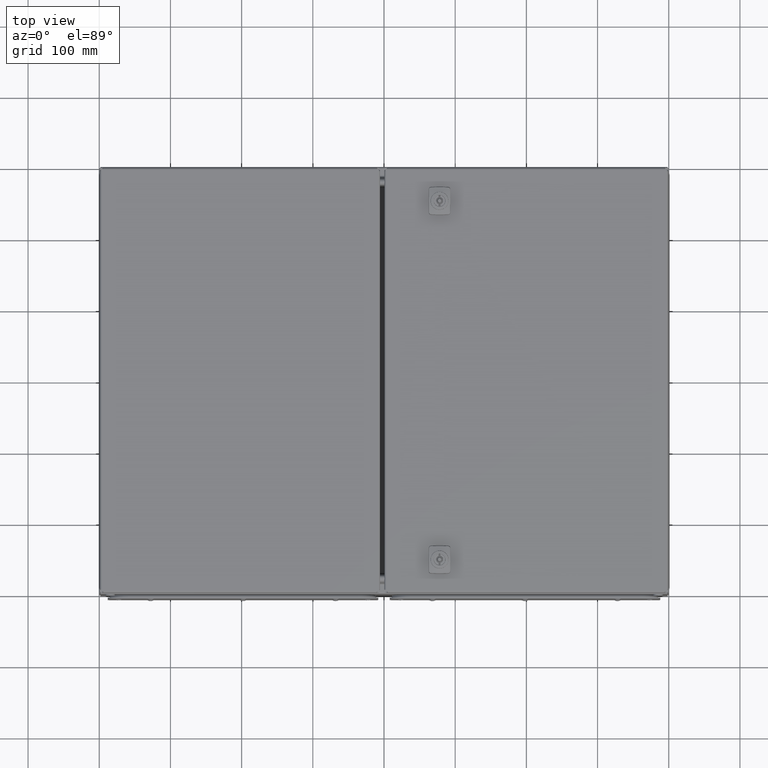
[diagram: clean part render]
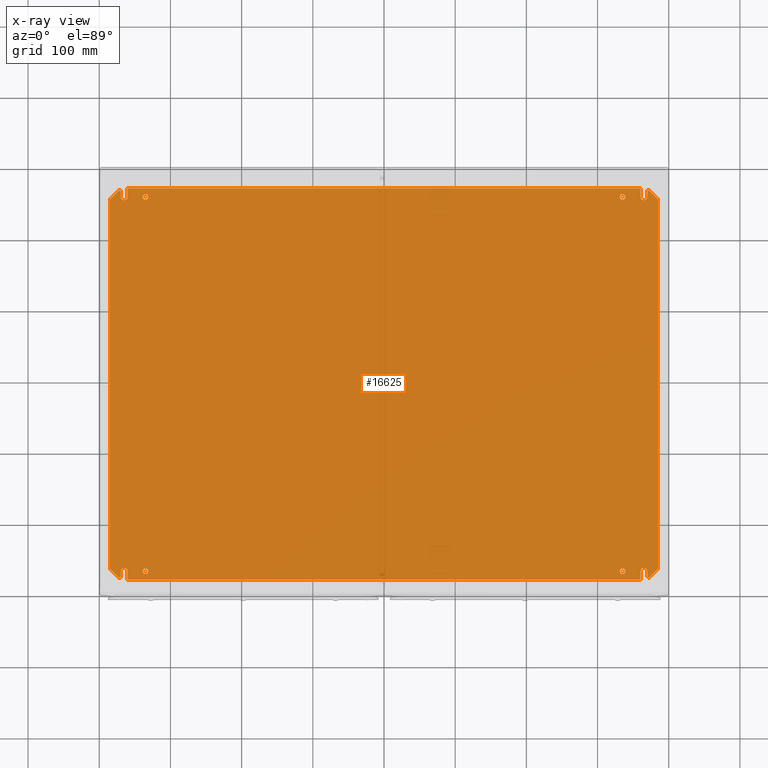
[diagram: x-ray — body ghosted, one internal face saturated and labeled with its STEP entity id]
A machine part, top view, then the same camera in x-ray: the body is ghosted and one INTERNAL B-rep face — a face not visible from any outside direction — is saturated and labeled: STEP entity #16625.
In plain terms, the highlighted planar face has unit normal (0, 0, 1).
Its self-contained STEP definition (entity closure, byte-faithful):
#790 = CARTESIAN_POINT ( 'NONE',  ( -384.9999999999998900, -275.0000000000000000, 2.500000000000000000 ) ) ;
#792 = DIRECTION ( 'NONE',  ( 1.000000000000000000, 1.441848083928774700E-016, 0.0000000000000000000 ) ) ;
#870 = DIRECTION ( 'NONE',  ( 0.0000000000000000000, -1.000000000000000000, 0.0000000000000000000 ) ) ;
#876 = CARTESIAN_POINT ( 'NONE',  ( -369.7500000000002300, -262.9999999999999400, 2.499999999997726300 ) ) ;
#896 = CARTESIAN_POINT ( 'NONE',  ( -371.7500000000002300, -270.0000000000000000, 2.499999999997726300 ) ) ;
#900 = DIRECTION ( 'NONE',  ( 0.0000000000000000000, 0.0000000000000000000, -1.000000000000000000 ) ) ;
#902 = DIRECTION ( 'NONE',  ( 1.000000000000000000, 0.0000000000000000000, 0.0000000000000000000 ) ) ;
#2019 = CARTESIAN_POINT ( 'NONE',  ( 360.2500000000001700, 274.9999999999998900, 2.499999999997726300 ) ) ;
#2294 = DIRECTION ( 'NONE',  ( 0.0000000000000000000, -1.000000000000000000, 0.0000000000000000000 ) ) ;
#2582 = CARTESIAN_POINT ( 'NONE',  ( 335.0000000000001700, -262.9999999999998900, 2.499999999997726300 ) ) ;
#2693 = DIRECTION ( 'NONE',  ( 1.000000000000000000, 0.0000000000000000000, 0.0000000000000000000 ) ) ;
#3022 = DIRECTION ( 'NONE',  ( -0.0000000000000000000, -0.0000000000000000000, -1.000000000000000000 ) ) ;
#4079 = CIRCLE ( 'NONE', #19294, 2.000000000000001800 ) ;
#4256 = VECTOR ( 'NONE', #870, 1000.000000000000000 ) ;
#4411 = LINE ( 'NONE', #2019, #4932 ) ;
#4712 = CIRCLE ( 'NONE', #19956, 4.000000000000003600 ) ;
#4716 = CIRCLE ( 'NONE', #20196, 4.000000000000003600 ) ;
#4800 = LINE ( 'NONE', #876, #4256 ) ;
#4921 = LINE ( 'NONE', #790, #5052 ) ;
#4932 = VECTOR ( 'NONE', #2294, 1000.000000000000000 ) ;
#5052 = VECTOR ( 'NONE', #792, 1000.000000000000000 ) ;
#5122 = CIRCLE ( 'NONE', #19654, 4.000000000000003600 ) ;
#6007 = EDGE_CURVE ( 'NONE', #18758, #17968, #4712, .T. ) ;
#6011 = EDGE_CURVE ( 'NONE', #18945, #18337, #4411, .T. ) ;
#6050 = EDGE_CURVE ( 'NONE', #17704, #18200, #5122, .T. ) ;
#6188 = EDGE_CURVE ( 'NONE', #18481, #17998, #4079, .T. ) ;
#6193 = EDGE_CURVE ( 'NONE', #18026, #18481, #4800, .T. ) ;
#6202 = EDGE_CURVE ( 'NONE', #17310, #19166, #4921, .T. ) ;
#6473 = EDGE_CURVE ( 'NONE', #17738, #17744, #4716, .T. ) ;
#6560 = EDGE_CURVE ( 'NONE', #17938, #17794, #42363, .T. ) ;
#6612 = EDGE_CURVE ( 'NONE', #18945, #18748, #43141, .T. ) ;
#6676 = EDGE_CURVE ( 'NONE', #17968, #18758, #43454, .T. ) ;
#6796 = EDGE_CURVE ( 'NONE', #17744, #17738, #43430, .T. ) ;
#6798 = EDGE_CURVE ( 'NONE', #18343, #17963, #42202, .T. ) ;
#6810 = EDGE_CURVE ( 'NONE', #18713, #18918, #42942, .T. ) ;
#6838 = EDGE_CURVE ( 'NONE', #18316, #17520, #42966, .T. ) ;
#6893 = EDGE_CURVE ( 'NONE', #17794, #17938, #43015, .T. ) ;
#6932 = EDGE_CURVE ( 'NONE', #17998, #17520, #42078, .T. ) ;
#6968 = EDGE_CURVE ( 'NONE', #17963, #17818, #42901, .T. ) ;
#7044 = EDGE_CURVE ( 'NONE', #19166, #18713, #42424, .T. ) ;
#7083 = EDGE_CURVE ( 'NONE', #18918, #17691, #42645, .T. ) ;
#7092 = EDGE_CURVE ( 'NONE', #18337, #18343, #42877, .T. ) ;
#7115 = EDGE_CURVE ( 'NONE', #18748, #17431, #43372, .T. ) ;
#7136 = EDGE_CURVE ( 'NONE', #19078, #18124, #42980, .T. ) ;
#7149 = EDGE_CURVE ( 'NONE', #18124, #17458, #41931, .T. ) ;
#7191 = EDGE_CURVE ( 'NONE', #17310, #17481, #42531, .T. ) ;
#7936 = CARTESIAN_POINT ( 'NONE',  ( 369.7500000000002300, 262.9999999999999400, 2.499999999997726300 ) ) ;
#7984 = DIRECTION ( 'NONE',  ( 0.0000000000000000000, 1.000000000000000000, 0.0000000000000000000 ) ) ;
#8039 = DIRECTION ( 'NONE',  ( -1.000000000000000000, 0.0000000000000000000, 0.0000000000000000000 ) ) ;
#8129 = DIRECTION ( 'NONE',  ( 0.0000000000000000000, 0.0000000000000000000, 1.000000000000000000 ) ) ;
#8160 = EDGE_CURVE ( 'NONE', #17431, #18937, #18578, .T. ) ;
#8195 = EDGE_CURVE ( 'NONE', #17691, #19078, #18583, .T. ) ;
#8314 = CARTESIAN_POINT ( 'NONE',  ( 365.0000000000002300, -262.9999999999999400, 2.499999999997726300 ) ) ;
#8316 = EDGE_CURVE ( 'NONE', #17818, #17458, #18141, .T. ) ;
#8345 = DIRECTION ( 'NONE',  ( -0.0000000000000000000, -0.0000000000000000000, -1.000000000000000000 ) ) ;
#8357 = EDGE_CURVE ( 'NONE', #18937, #19021, #17852, .T. ) ;
#8399 = EDGE_CURVE ( 'NONE', #17481, #18026, #17846, .T. ) ;
#8511 = CARTESIAN_POINT ( 'NONE',  ( 335.0000000000001700, -262.9999999999998900, 2.499999999997726300 ) ) ;
#8958 = DIRECTION ( 'NONE',  ( 1.000000000000000000, 0.0000000000000000000, 0.0000000000000000000 ) ) ;
#9048 = DIRECTION ( 'NONE',  ( 1.000000000000000000, 0.0000000000000000000, 0.0000000000000000000 ) ) ;
#9126 = DIRECTION ( 'NONE',  ( -1.000000000000000000, 0.0000000000000000000, 0.0000000000000000000 ) ) ;
#9138 = CARTESIAN_POINT ( 'NONE',  ( -335.0000000000001700, -262.9999999999998900, 2.499999999997726300 ) ) ;
#9177 = EDGE_CURVE ( 'NONE', #19007, #18316, #45265, .T. ) ;
#9339 = DIRECTION ( 'NONE',  ( -0.0000000000000000000, -0.0000000000000000000, -1.000000000000000000 ) ) ;
#9371 = CARTESIAN_POINT ( 'NONE',  ( -385.0000000000001100, 274.9999999999997700, 2.500000000000000000 ) ) ;
#9466 = EDGE_CURVE ( 'NONE', #19021, #19007, #46404, .T. ) ;
#9474 = DIRECTION ( 'NONE',  ( 4.037174635000570600E-016, -1.000000000000000000, 0.0000000000000000000 ) ) ;
#9924 = CARTESIAN_POINT ( 'NONE',  ( -335.0000000000001700, 262.9999999999998900, 2.499999999997726300 ) ) ;
#9927 = DIRECTION ( 'NONE',  ( -0.0000000000000000000, -0.0000000000000000000, -1.000000000000000000 ) ) ;
#10102 = EDGE_CURVE ( 'NONE', #18200, #17704, #44715, .T. ) ;
#12392 = DIRECTION ( 'NONE',  ( 0.0000000000000000000, 0.0000000000000000000, 1.000000000000000000 ) ) ;
#12411 = DIRECTION ( 'NONE',  ( 1.000000000000000000, 0.0000000000000000000, 0.0000000000000000000 ) ) ;
#12644 = CARTESIAN_POINT ( 'NONE',  ( 335.0000000000001700, 262.9999999999998900, 2.499999999997726300 ) ) ;
#14482 = FACE_BOUND ( 'NONE', #41717, .T. ) ;
#14544 = FACE_BOUND ( 'NONE', #41706, .T. ) ;
#14665 = FACE_OUTER_BOUND ( 'NONE', #42753, .T. ) ;
#15076 = FACE_BOUND ( 'NONE', #41591, .T. ) ;
#15354 = FACE_BOUND ( 'NONE', #42828, .T. ) ;
#16625 = ADVANCED_FACE ( 'NONE', ( #14544, #14482, #15354, #15076, #14665 ), #28680, .T. ) ;
#16942 = AXIS2_PLACEMENT_3D ( 'NONE', #39585, #39303, #39173 ) ;
#16949 = AXIS2_PLACEMENT_3D ( 'NONE', #39225, #38953, #39027 ) ;
#16997 = AXIS2_PLACEMENT_3D ( 'NONE', #20286, #20624, #20500 ) ;
#17296 = AXIS2_PLACEMENT_3D ( 'NONE', #30799, #30297, #30550 ) ;
#17307 = AXIS2_PLACEMENT_3D ( 'NONE', #12644, #12392, #12411 ) ;
#17310 = VERTEX_POINT ( 'NONE', #46529 ) ;
#17431 = VERTEX_POINT ( 'NONE', #46909 ) ;
#17458 = VERTEX_POINT ( 'NONE', #46899 ) ;
#17481 = VERTEX_POINT ( 'NONE', #46875 ) ;
#17520 = VERTEX_POINT ( 'NONE', #46846 ) ;
#17691 = VERTEX_POINT ( 'NONE', #46944 ) ;
#17704 = VERTEX_POINT ( 'NONE', #46762 ) ;
#17738 = VERTEX_POINT ( 'NONE', #46772 ) ;
#17744 = VERTEX_POINT ( 'NONE', #46775 ) ;
#17794 = VERTEX_POINT ( 'NONE', #46941 ) ;
#17818 = VERTEX_POINT ( 'NONE', #46991 ) ;
#17846 = CIRCLE ( 'NONE', #16997, 4.750000000000032000 ) ;
#17852 = LINE ( 'NONE', #21320, #18513 ) ;
#17938 = VERTEX_POINT ( 'NONE', #47045 ) ;
#17963 = VERTEX_POINT ( 'NONE', #46958 ) ;
#17968 = VERTEX_POINT ( 'NONE', #46960 ) ;
#17998 = VERTEX_POINT ( 'NONE', #46972 ) ;
#18026 = VERTEX_POINT ( 'NONE', #46533 ) ;
#18124 = VERTEX_POINT ( 'NONE', #46617 ) ;
#18135 = VECTOR ( 'NONE', #20350, 1000.000000000000100 ) ;
#18141 = LINE ( 'NONE', #21016, #18135 ) ;
#18200 = VERTEX_POINT ( 'NONE', #46646 ) ;
#18316 = VERTEX_POINT ( 'NONE', #46559 ) ;
#18337 = VERTEX_POINT ( 'NONE', #46578 ) ;
#18343 = VERTEX_POINT ( 'NONE', #46577 ) ;
#18481 = VERTEX_POINT ( 'NONE', #46346 ) ;
#18513 = VECTOR ( 'NONE', #20309, 1000.000000000000000 ) ;
#18578 = CIRCLE ( 'NONE', #16949, 4.750000000000032000 ) ;
#18583 = CIRCLE ( 'NONE', #16942, 2.000000000000001800 ) ;
#18713 = VERTEX_POINT ( 'NONE', #46141 ) ;
#18748 = VERTEX_POINT ( 'NONE', #46193 ) ;
#18758 = VERTEX_POINT ( 'NONE', #46190 ) ;
#18918 = VERTEX_POINT ( 'NONE', #50047 ) ;
#18937 = VERTEX_POINT ( 'NONE', #50912 ) ;
#18945 = VERTEX_POINT ( 'NONE', #50506 ) ;
#19007 = VERTEX_POINT ( 'NONE', #50852 ) ;
#19021 = VERTEX_POINT ( 'NONE', #51015 ) ;
#19078 = VERTEX_POINT ( 'NONE', #50287 ) ;
#19166 = VERTEX_POINT ( 'NONE', #49654 ) ;
#19248 = AXIS2_PLACEMENT_3D ( 'NONE', #8314, #8345, #8958 ) ;
#19294 = AXIS2_PLACEMENT_3D ( 'NONE', #896, #900, #902 ) ;
#19418 = AXIS2_PLACEMENT_3D ( 'NONE', #27038, #26182, #26278 ) ;
#19485 = AXIS2_PLACEMENT_3D ( 'NONE', #8511, #9339, #9048 ) ;
#19563 = AXIS2_PLACEMENT_3D ( 'NONE', #9138, #8129, #8039 ) ;
#19602 = AXIS2_PLACEMENT_3D ( 'NONE', #9924, #9927, #9126 ) ;
#19654 = AXIS2_PLACEMENT_3D ( 'NONE', #33765, #33811, #33688 ) ;
#19789 = AXIS2_PLACEMENT_3D ( 'NONE', #26905, #27151, #27014 ) ;
#19923 = AXIS2_PLACEMENT_3D ( 'NONE', #57865, #57920, #56969 ) ;
#19956 = AXIS2_PLACEMENT_3D ( 'NONE', #2582, #3022, #2693 ) ;
#20196 = AXIS2_PLACEMENT_3D ( 'NONE', #57238, #57918, #57220 ) ;
#20286 = CARTESIAN_POINT ( 'NONE',  ( -365.0000000000002300, -262.9999999999999400, 2.499999999997726300 ) ) ;
#20309 = DIRECTION ( 'NONE',  ( 0.0000000000000000000, 1.000000000000000000, 0.0000000000000000000 ) ) ;
#20350 = DIRECTION ( 'NONE',  ( 0.7071067811865491300, -0.7071067811865459100, 0.0000000000000000000 ) ) ;
#20500 = DIRECTION ( 'NONE',  ( -1.000000000000000000, 0.0000000000000000000, 0.0000000000000000000 ) ) ;
#20624 = DIRECTION ( 'NONE',  ( 0.0000000000000000000, 0.0000000000000000000, 1.000000000000000000 ) ) ;
#21016 = CARTESIAN_POINT ( 'NONE',  ( 373.1642135623733300, 271.4142135623731600, 2.499999999997726300 ) ) ;
#21320 = CARTESIAN_POINT ( 'NONE',  ( -369.7500000000002300, 262.9999999999999400, 2.499999999997726300 ) ) ;
#21460 = ORIENTED_EDGE ( 'NONE', *, *, #6473, .T. ) ;
#21474 = ORIENTED_EDGE ( 'NONE', *, *, #7115, .T. ) ;
#21520 = ORIENTED_EDGE ( 'NONE', *, *, #8399, .F. ) ;
#21645 = ORIENTED_EDGE ( 'NONE', *, *, #6796, .T. ) ;
#21646 = ORIENTED_EDGE ( 'NONE', *, *, #10102, .F. ) ;
#21651 = ORIENTED_EDGE ( 'NONE', *, *, #8195, .T. ) ;
#21700 = ORIENTED_EDGE ( 'NONE', *, *, #6050, .F. ) ;
#21770 = ORIENTED_EDGE ( 'NONE', *, *, #7092, .F. ) ;
#21785 = ORIENTED_EDGE ( 'NONE', *, *, #8316, .F. ) ;
#21814 = ORIENTED_EDGE ( 'NONE', *, *, #6560, .F. ) ;
#21840 = ORIENTED_EDGE ( 'NONE', *, *, #6011, .F. ) ;
#21893 = ORIENTED_EDGE ( 'NONE', *, *, #6202, .T. ) ;
#21898 = ORIENTED_EDGE ( 'NONE', *, *, #6968, .F. ) ;
#21911 = ORIENTED_EDGE ( 'NONE', *, *, #6810, .T. ) ;
#21978 = ORIENTED_EDGE ( 'NONE', *, *, #6838, .T. ) ;
#22052 = ORIENTED_EDGE ( 'NONE', *, *, #7136, .T. ) ;
#22103 = ORIENTED_EDGE ( 'NONE', *, *, #7083, .T. ) ;
#22124 = ORIENTED_EDGE ( 'NONE', *, *, #8357, .T. ) ;
#22150 = ORIENTED_EDGE ( 'NONE', *, *, #7044, .T. ) ;
#22182 = ORIENTED_EDGE ( 'NONE', *, *, #9177, .T. ) ;
#22316 = ORIENTED_EDGE ( 'NONE', *, *, #7149, .T. ) ;
#22337 = ORIENTED_EDGE ( 'NONE', *, *, #6932, .F. ) ;
#22493 = ORIENTED_EDGE ( 'NONE', *, *, #6612, .T. ) ;
#22494 = ORIENTED_EDGE ( 'NONE', *, *, #6893, .F. ) ;
#22614 = ORIENTED_EDGE ( 'NONE', *, *, #6007, .T. ) ;
#22637 = ORIENTED_EDGE ( 'NONE', *, *, #6676, .T. ) ;
#26182 = DIRECTION ( 'NONE',  ( 0.0000000000000000000, 0.0000000000000000000, 1.000000000000000000 ) ) ;
#26191 = DIRECTION ( 'NONE',  ( 0.0000000000000000000, -1.000000000000000000, 0.0000000000000000000 ) ) ;
#26247 = DIRECTION ( 'NONE',  ( -0.7071067811865491300, 0.7071067811865459100, 0.0000000000000000000 ) ) ;
#26248 = DIRECTION ( 'NONE',  ( -0.0000000000000000000, 1.000000000000000000, -0.0000000000000000000 ) ) ;
#26278 = DIRECTION ( 'NONE',  ( 1.000000000000000000, 0.0000000000000000000, 0.0000000000000000000 ) ) ;
#26479 = CARTESIAN_POINT ( 'NONE',  ( -373.1642135623733300, -271.4142135623731600, 2.499999999997726300 ) ) ;
#26671 = CARTESIAN_POINT ( 'NONE',  ( -360.2500000000001700, 274.9999999999998900, 2.499999999997726300 ) ) ;
#26696 = DIRECTION ( 'NONE',  ( 0.0000000000000000000, -1.000000000000000000, 0.0000000000000000000 ) ) ;
#26700 = CARTESIAN_POINT ( 'NONE',  ( -360.2500000000001700, -274.9999999999998900, 2.499999999997726300 ) ) ;
#26766 = CARTESIAN_POINT ( 'NONE',  ( 385.0000000000001100, 274.9999999999998900, 2.500000000000000000 ) ) ;
#26905 = CARTESIAN_POINT ( 'NONE',  ( 371.7500000000002300, 270.0000000000000000, 2.499999999997726300 ) ) ;
#27014 = DIRECTION ( 'NONE',  ( -1.000000000000000000, 0.0000000000000000000, 0.0000000000000000000 ) ) ;
#27029 = CARTESIAN_POINT ( 'NONE',  ( 369.7500000000002300, -262.9999999999999400, 2.499999999997726300 ) ) ;
#27038 = CARTESIAN_POINT ( 'NONE',  ( 365.0000000000002300, 262.9999999999999400, 2.499999999997726300 ) ) ;
#27125 = CARTESIAN_POINT ( 'NONE',  ( 360.2500000000001700, -274.9999999999998900, 2.499999999997726300 ) ) ;
#27136 = CARTESIAN_POINT ( 'NONE',  ( 373.1642135623733300, -271.4142135623731600, 2.499999999997726300 ) ) ;
#27151 = DIRECTION ( 'NONE',  ( -0.0000000000000000000, -0.0000000000000000000, -1.000000000000000000 ) ) ;
#27196 = DIRECTION ( 'NONE',  ( 0.0000000000000000000, 1.000000000000000000, 0.0000000000000000000 ) ) ;
#27242 = DIRECTION ( 'NONE',  ( 0.0000000000000000000, 1.000000000000000000, 0.0000000000000000000 ) ) ;
#27252 = DIRECTION ( 'NONE',  ( 0.7071067811865491300, 0.7071067811865459100, 0.0000000000000000000 ) ) ;
#27472 = AXIS2_PLACEMENT_3D ( 'NONE', #28665, #28668, #28661 ) ;
#28661 = DIRECTION ( 'NONE',  ( 1.000000000000000000, 0.0000000000000000000, 0.0000000000000000000 ) ) ;
#28665 = CARTESIAN_POINT ( 'NONE',  ( -384.9999999999998900, -275.0000000000000000, 2.500000000000000000 ) ) ;
#28668 = DIRECTION ( 'NONE',  ( -0.0000000000000000000, 0.0000000000000000000, 1.000000000000000000 ) ) ;
#28680 = PLANE ( 'NONE',  #27472 ) ;
#30297 = DIRECTION ( 'NONE',  ( -0.0000000000000000000, 0.0000000000000000000, 1.000000000000000000 ) ) ;
#30538 = DIRECTION ( 'NONE',  ( -0.7071067811865491300, -0.7071067811865459100, 0.0000000000000000000 ) ) ;
#30550 = DIRECTION ( 'NONE',  ( 1.000000000000000000, 0.0000000000000000000, 0.0000000000000000000 ) ) ;
#30799 = CARTESIAN_POINT ( 'NONE',  ( -371.7500000000002300, 270.0000000000000000, 2.499999999997726300 ) ) ;
#31197 = CARTESIAN_POINT ( 'NONE',  ( -373.1642135623733300, 271.4142135623731600, 2.499999999997726300 ) ) ;
#33688 = DIRECTION ( 'NONE',  ( 1.000000000000000000, 0.0000000000000000000, 0.0000000000000000000 ) ) ;
#33765 = CARTESIAN_POINT ( 'NONE',  ( 335.0000000000001700, 262.9999999999998900, 2.499999999997726300 ) ) ;
#33811 = DIRECTION ( 'NONE',  ( 0.0000000000000000000, 0.0000000000000000000, 1.000000000000000000 ) ) ;
#35046 = ORIENTED_EDGE ( 'NONE', *, *, #6798, .F. ) ;
#35130 = ORIENTED_EDGE ( 'NONE', *, *, #6188, .F. ) ;
#35498 = ORIENTED_EDGE ( 'NONE', *, *, #7191, .F. ) ;
#35738 = ORIENTED_EDGE ( 'NONE', *, *, #6193, .F. ) ;
#36029 = ORIENTED_EDGE ( 'NONE', *, *, #9466, .T. ) ;
#36401 = ORIENTED_EDGE ( 'NONE', *, *, #8160, .T. ) ;
#38953 = DIRECTION ( 'NONE',  ( -0.0000000000000000000, -0.0000000000000000000, -1.000000000000000000 ) ) ;
#39027 = DIRECTION ( 'NONE',  ( -1.000000000000000000, 0.0000000000000000000, 0.0000000000000000000 ) ) ;
#39173 = DIRECTION ( 'NONE',  ( -1.000000000000000000, 0.0000000000000000000, 0.0000000000000000000 ) ) ;
#39225 = CARTESIAN_POINT ( 'NONE',  ( -365.0000000000002300, 262.9999999999999400, 2.499999999997726300 ) ) ;
#39303 = DIRECTION ( 'NONE',  ( 0.0000000000000000000, -0.0000000000000000000, 1.000000000000000000 ) ) ;
#39585 = CARTESIAN_POINT ( 'NONE',  ( 371.7500000000002300, -270.0000000000000000, 2.499999999997726300 ) ) ;
#41591 = EDGE_LOOP ( 'NONE', ( #21646, #21700 ) ) ;
#41706 = EDGE_LOOP ( 'NONE', ( #21645, #21460 ) ) ;
#41717 = EDGE_LOOP ( 'NONE', ( #22494, #21814 ) ) ;
#41889 = VECTOR ( 'NONE', #27252, 1000.000000000000100 ) ;
#41931 = LINE ( 'NONE', #26766, #42888 ) ;
#42078 = LINE ( 'NONE', #26479, #43357 ) ;
#42202 = LINE ( 'NONE', #7936, #42885 ) ;
#42363 = CIRCLE ( 'NONE', #19923, 4.000000000000003600 ) ;
#42424 = LINE ( 'NONE', #27125, #43255 ) ;
#42531 = LINE ( 'NONE', #26700, #42924 ) ;
#42645 = LINE ( 'NONE', #27029, #42951 ) ;
#42753 = EDGE_LOOP ( 'NONE', ( #36029, #22182, #21978, #22337, #35130, #35738, #21520, #35498, #21893, #22150, #21911, #22103, #21651, #22052, #22316, #21785, #21898, #35046, #21770, #21840, #22493, #21474, #36401, #22124 ) ) ;
#42828 = EDGE_LOOP ( 'NONE', ( #22614, #22637 ) ) ;
#42877 = CIRCLE ( 'NONE', #19418, 4.750000000000032000 ) ;
#42885 = VECTOR ( 'NONE', #7984, 1000.000000000000000 ) ;
#42888 = VECTOR ( 'NONE', #26248, 1000.000000000000000 ) ;
#42901 = CIRCLE ( 'NONE', #19789, 2.000000000000001800 ) ;
#42924 = VECTOR ( 'NONE', #27196, 1000.000000000000000 ) ;
#42942 = CIRCLE ( 'NONE', #19248, 4.750000000000032000 ) ;
#42951 = VECTOR ( 'NONE', #26696, 1000.000000000000000 ) ;
#42966 = LINE ( 'NONE', #9371, #43143 ) ;
#42980 = LINE ( 'NONE', #27136, #41889 ) ;
#43015 = CIRCLE ( 'NONE', #19563, 4.000000000000003600 ) ;
#43141 = LINE ( 'NONE', #57083, #43516 ) ;
#43143 = VECTOR ( 'NONE', #9474, 1000.000000000000000 ) ;
#43255 = VECTOR ( 'NONE', #27242, 1000.000000000000000 ) ;
#43342 = VECTOR ( 'NONE', #26191, 1000.000000000000000 ) ;
#43357 = VECTOR ( 'NONE', #26247, 1000.000000000000100 ) ;
#43372 = LINE ( 'NONE', #26671, #43342 ) ;
#43430 = CIRCLE ( 'NONE', #19602, 4.000000000000003600 ) ;
#43454 = CIRCLE ( 'NONE', #19485, 4.000000000000003600 ) ;
#43516 = VECTOR ( 'NONE', #58221, 1000.000000000000000 ) ;
#44715 = CIRCLE ( 'NONE', #17307, 4.000000000000003600 ) ;
#44790 = VECTOR ( 'NONE', #30538, 1000.000000000000100 ) ;
#45265 = LINE ( 'NONE', #31197, #44790 ) ;
#46141 = CARTESIAN_POINT ( 'NONE',  ( 360.2500000000001700, -262.9999999999999400, 2.499999999997726300 ) ) ;
#46190 = CARTESIAN_POINT ( 'NONE',  ( 339.0000000000001700, -262.9999999999998900, 2.499999999997726300 ) ) ;
#46193 = CARTESIAN_POINT ( 'NONE',  ( -360.2500000000001700, 274.9999999999997700, 2.500000000000000000 ) ) ;
#46346 = CARTESIAN_POINT ( 'NONE',  ( -369.7500000000002300, -270.0000000000000000, 2.499999999997726300 ) ) ;
#46404 = CIRCLE ( 'NONE', #17296, 2.000000000000001800 ) ;
#46529 = CARTESIAN_POINT ( 'NONE',  ( -360.2500000000001700, -274.9999999999998900, 2.499999999997726300 ) ) ;
#46533 = CARTESIAN_POINT ( 'NONE',  ( -369.7500000000002300, -262.9999999999999400, 2.499999999997726300 ) ) ;
#46559 = CARTESIAN_POINT ( 'NONE',  ( -385.0000000000002300, 259.5784271247463300, 2.499999999997726300 ) ) ;
#46577 = CARTESIAN_POINT ( 'NONE',  ( 369.7500000000002300, 262.9999999999999400, 2.499999999997726300 ) ) ;
#46578 = CARTESIAN_POINT ( 'NONE',  ( 360.2500000000001700, 262.9999999999999400, 2.499999999997726300 ) ) ;
#46617 = CARTESIAN_POINT ( 'NONE',  ( 385.0000000000002300, -259.5784271247463300, 2.499999999997726300 ) ) ;
#46646 = CARTESIAN_POINT ( 'NONE',  ( 339.0000000000001700, 262.9999999999998900, 2.499999999997726300 ) ) ;
#46762 = CARTESIAN_POINT ( 'NONE',  ( 331.0000000000001700, 262.9999999999998900, 2.499999999997726300 ) ) ;
#46772 = CARTESIAN_POINT ( 'NONE',  ( -339.0000000000001700, 262.9999999999998900, 2.499999999997726300 ) ) ;
#46775 = CARTESIAN_POINT ( 'NONE',  ( -331.0000000000001700, 262.9999999999998900, 2.499999999997726300 ) ) ;
#46846 = CARTESIAN_POINT ( 'NONE',  ( -384.9999999999998900, -259.5784271247466700, 2.500000000000000000 ) ) ;
#46875 = CARTESIAN_POINT ( 'NONE',  ( -360.2500000000001700, -262.9999999999999400, 2.499999999997726300 ) ) ;
#46899 = CARTESIAN_POINT ( 'NONE',  ( 385.0000000000002300, 259.5784271247463300, 2.499999999997726300 ) ) ;
#46909 = CARTESIAN_POINT ( 'NONE',  ( -360.2500000000001700, 262.9999999999999400, 2.499999999997726300 ) ) ;
#46941 = CARTESIAN_POINT ( 'NONE',  ( -331.0000000000001700, -262.9999999999998900, 2.499999999997726300 ) ) ;
#46944 = CARTESIAN_POINT ( 'NONE',  ( 369.7500000000002300, -270.0000000000000000, 2.499999999997726300 ) ) ;
#46958 = CARTESIAN_POINT ( 'NONE',  ( 369.7500000000002300, 270.0000000000000000, 2.499999999997726300 ) ) ;
#46960 = CARTESIAN_POINT ( 'NONE',  ( 331.0000000000001700, -262.9999999999998900, 2.499999999997726300 ) ) ;
#46972 = CARTESIAN_POINT ( 'NONE',  ( -373.1642135623733300, -271.4142135623731600, 2.499999999997726300 ) ) ;
#46991 = CARTESIAN_POINT ( 'NONE',  ( 373.1642135623733300, 271.4142135623731600, 2.499999999997726300 ) ) ;
#47045 = CARTESIAN_POINT ( 'NONE',  ( -339.0000000000001700, -262.9999999999998900, 2.499999999997726300 ) ) ;
#49654 = CARTESIAN_POINT ( 'NONE',  ( 360.2500000000001700, -274.9999999999998900, 2.499999999997726300 ) ) ;
#50047 = CARTESIAN_POINT ( 'NONE',  ( 369.7500000000002300, -262.9999999999999400, 2.499999999997726300 ) ) ;
#50287 = CARTESIAN_POINT ( 'NONE',  ( 373.1642135623733300, -271.4142135623731600, 2.499999999997726300 ) ) ;
#50506 = CARTESIAN_POINT ( 'NONE',  ( 360.2500000000001700, 274.9999999999998900, 2.499999999997726300 ) ) ;
#50852 = CARTESIAN_POINT ( 'NONE',  ( -373.1642135623733300, 271.4142135623731600, 2.499999999997726300 ) ) ;
#50912 = CARTESIAN_POINT ( 'NONE',  ( -369.7500000000002300, 262.9999999999999400, 2.499999999997726300 ) ) ;
#51015 = CARTESIAN_POINT ( 'NONE',  ( -369.7500000000002300, 270.0000000000000000, 2.499999999997726300 ) ) ;
#56969 = DIRECTION ( 'NONE',  ( -1.000000000000000000, 0.0000000000000000000, 0.0000000000000000000 ) ) ;
#57083 = CARTESIAN_POINT ( 'NONE',  ( -385.0000000000001100, 274.9999999999997700, 2.500000000000000000 ) ) ;
#57220 = DIRECTION ( 'NONE',  ( -1.000000000000000000, 0.0000000000000000000, 0.0000000000000000000 ) ) ;
#57238 = CARTESIAN_POINT ( 'NONE',  ( -335.0000000000001700, 262.9999999999998900, 2.499999999997726300 ) ) ;
#57865 = CARTESIAN_POINT ( 'NONE',  ( -335.0000000000001700, -262.9999999999998900, 2.499999999997726300 ) ) ;
#57918 = DIRECTION ( 'NONE',  ( -0.0000000000000000000, -0.0000000000000000000, -1.000000000000000000 ) ) ;
#57920 = DIRECTION ( 'NONE',  ( 0.0000000000000000000, 0.0000000000000000000, 1.000000000000000000 ) ) ;
#58221 = DIRECTION ( 'NONE',  ( -1.000000000000000000, -1.441848083928774200E-016, -0.0000000000000000000 ) ) ;